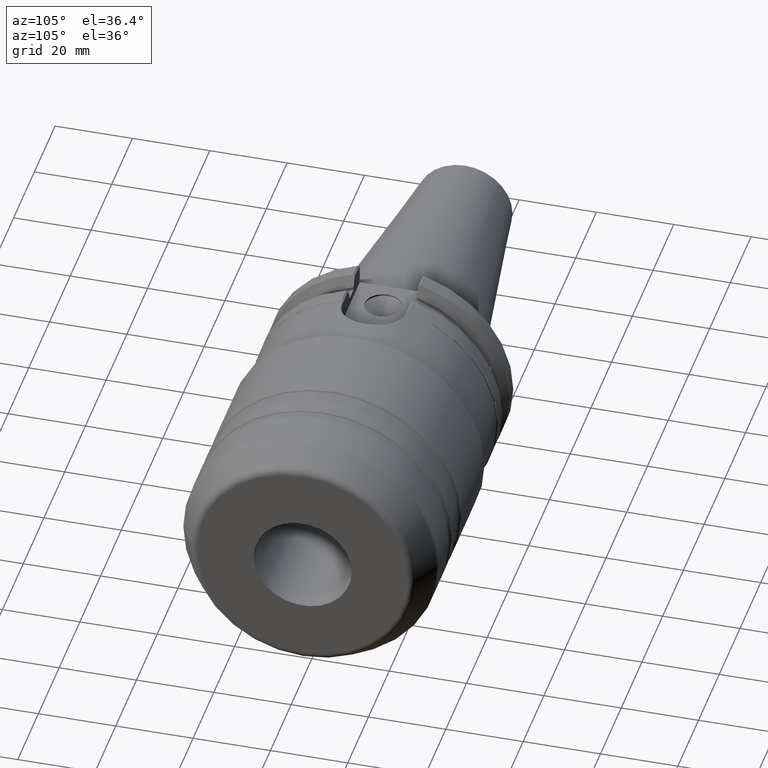
[diagram: clean part render]
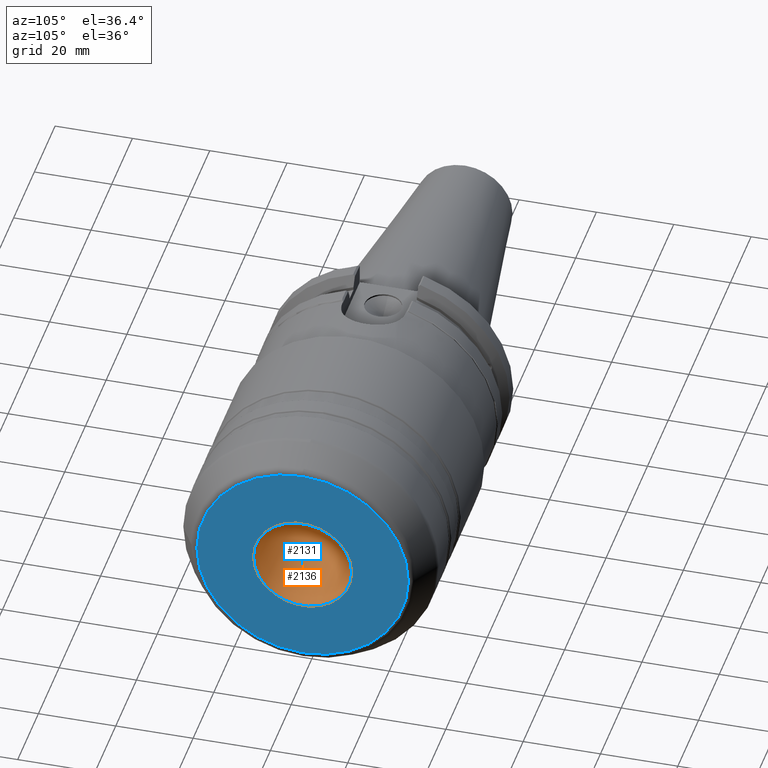
[diagram: same view with the hole feature highlighted: cylindrical wall and planar end face, labeled with their STEP entity ids]
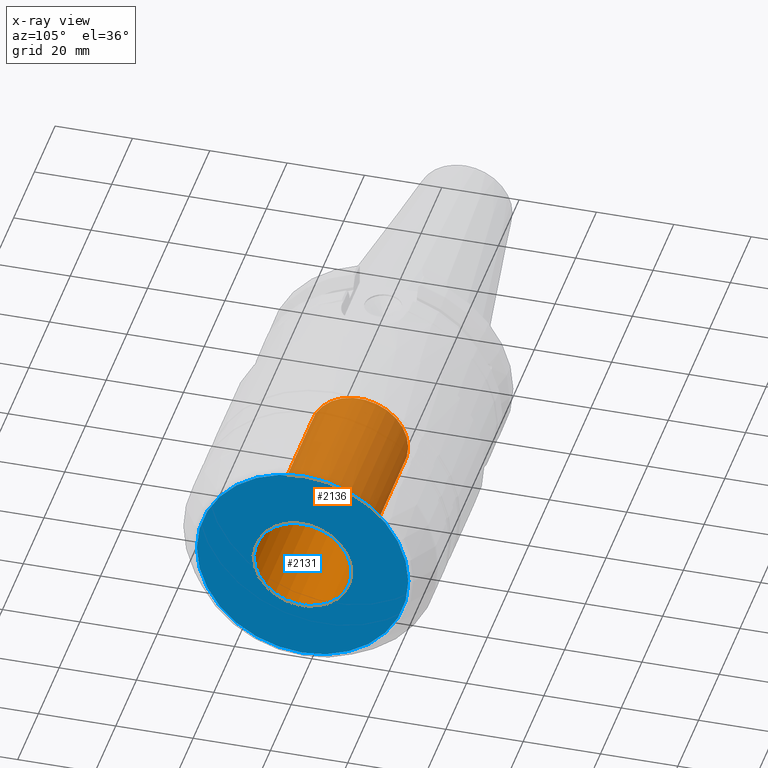
[diagram: x-ray of the same camera — body ghosted, the hole faces saturated]
A machine part, auxiliary view. The highlighted faces form one hole feature of diameter 25.4 mm: the cylindrical wall (entity #2136, orange) and its adjacent planar end face (entity #2131, blue) — they share a circular edge in the B-rep.
The next image is the same camera in x-ray (body ghosted, the hole faces saturated) — the bore reads through the body.
Wall:
#161=CYLINDRICAL_SURFACE('',#2367,12.7);
#224=FACE_OUTER_BOUND('',#336,.T.);
#336=EDGE_LOOP('',(#1651,#1652,#1653,#1654,#1655,#1656));
#452=LINE('',#3676,#556);
#556=VECTOR('',#2850,12.7);
#721=CIRCLE('',#2357,12.7);
#722=CIRCLE('',#2358,12.7);
#727=CIRCLE('',#2368,12.7);
#728=CIRCLE('',#2369,12.7);
#905=VERTEX_POINT('',#3653);
#906=VERTEX_POINT('',#3654);
#912=VERTEX_POINT('',#3675);
#913=VERTEX_POINT('',#3677);
#1182=EDGE_CURVE('',#905,#906,#721,.T.);
#1183=EDGE_CURVE('',#906,#905,#722,.T.);
#1192=EDGE_CURVE('',#906,#912,#452,.T.);
#1193=EDGE_CURVE('',#913,#912,#727,.T.);
#1194=EDGE_CURVE('',#912,#913,#728,.T.);
#1651=ORIENTED_EDGE('',*,*,#1182,.T.);
#1652=ORIENTED_EDGE('',*,*,#1192,.T.);
#1653=ORIENTED_EDGE('',*,*,#1193,.F.);
#1654=ORIENTED_EDGE('',*,*,#1194,.F.);
#1655=ORIENTED_EDGE('',*,*,#1192,.F.);
#1656=ORIENTED_EDGE('',*,*,#1183,.T.);
#2136=ADVANCED_FACE('',(#224),#161,.F.);
#2357=AXIS2_PLACEMENT_3D('',#3655,#2824,#2825);
#2358=AXIS2_PLACEMENT_3D('',#3656,#2826,#2827);
#2367=AXIS2_PLACEMENT_3D('',#3674,#2848,#2849);
#2368=AXIS2_PLACEMENT_3D('',#3678,#2851,#2852);
#2369=AXIS2_PLACEMENT_3D('',#3679,#2853,#2854);
#2824=DIRECTION('center_axis',(1.,0.,0.));
#2825=DIRECTION('ref_axis',(0.,0.,-1.));
#2826=DIRECTION('center_axis',(1.,0.,0.));
#2827=DIRECTION('ref_axis',(0.,0.,-1.));
#2848=DIRECTION('center_axis',(1.,0.,0.));
#2849=DIRECTION('ref_axis',(0.,1.,0.));
#2850=DIRECTION('',(-1.,0.,0.));
#2851=DIRECTION('center_axis',(1.,0.,0.));
#2852=DIRECTION('ref_axis',(0.,0.,-1.));
#2853=DIRECTION('center_axis',(1.,0.,0.));
#2854=DIRECTION('ref_axis',(0.,0.,-1.));
#3653=CARTESIAN_POINT('',(88.9,12.7,0.));
#3654=CARTESIAN_POINT('',(88.9,-12.7,-1.55530143491714E-15));
#3655=CARTESIAN_POINT('Origin',(88.9,0.,0.));
#3656=CARTESIAN_POINT('Origin',(88.9,0.,0.));
#3674=CARTESIAN_POINT('Origin',(61.65,0.,0.));
#3675=CARTESIAN_POINT('',(34.4,-12.7,-1.55530143491714E-15));
#3676=CARTESIAN_POINT('',(61.65,-12.7,-1.55530143491714E-15));
#3677=CARTESIAN_POINT('',(34.4,12.7,0.));
#3678=CARTESIAN_POINT('Origin',(34.4,0.,0.));
#3679=CARTESIAN_POINT('Origin',(34.4,0.,0.));
End face:
#68=FACE_BOUND('',#330,.T.);
#83=PLANE('',#2356);
#219=FACE_OUTER_BOUND('',#329,.T.);
#329=EDGE_LOOP('',(#1628,#1629));
#330=EDGE_LOOP('',(#1630,#1631));
#718=CIRCLE('',#2353,27.3452994616207);
#720=CIRCLE('',#2355,27.3452994616207);
#721=CIRCLE('',#2357,12.7);
#722=CIRCLE('',#2358,12.7);
#903=VERTEX_POINT('',#3647);
#904=VERTEX_POINT('',#3648);
#905=VERTEX_POINT('',#3653);
#906=VERTEX_POINT('',#3654);
#1179=EDGE_CURVE('',#903,#904,#718,.T.);
#1181=EDGE_CURVE('',#904,#903,#720,.T.);
#1182=EDGE_CURVE('',#905,#906,#721,.T.);
#1183=EDGE_CURVE('',#906,#905,#722,.T.);
#1628=ORIENTED_EDGE('',*,*,#1179,.F.);
#1629=ORIENTED_EDGE('',*,*,#1181,.F.);
#1630=ORIENTED_EDGE('',*,*,#1182,.F.);
#1631=ORIENTED_EDGE('',*,*,#1183,.F.);
#2131=ADVANCED_FACE('',(#219,#68),#83,.T.);
#2353=AXIS2_PLACEMENT_3D('',#3649,#2816,#2817);
#2355=AXIS2_PLACEMENT_3D('',#3651,#2820,#2821);
#2356=AXIS2_PLACEMENT_3D('',#3652,#2822,#2823);
#2357=AXIS2_PLACEMENT_3D('',#3655,#2824,#2825);
#2358=AXIS2_PLACEMENT_3D('',#3656,#2826,#2827);
#2816=DIRECTION('center_axis',(-1.,0.,0.));
#2817=DIRECTION('ref_axis',(0.,-1.,1.83697019872103E-16));
#2820=DIRECTION('center_axis',(-1.,0.,0.));
#2821=DIRECTION('ref_axis',(0.,-1.,1.83697019872103E-16));
#2822=DIRECTION('center_axis',(1.,0.,0.));
#2823=DIRECTION('ref_axis',(0.,0.,-1.));
#2824=DIRECTION('center_axis',(1.,0.,0.));
#2825=DIRECTION('ref_axis',(0.,0.,-1.));
#2826=DIRECTION('center_axis',(1.,0.,0.));
#2827=DIRECTION('ref_axis',(0.,0.,-1.));
#3647=CARTESIAN_POINT('',(88.9,27.3452994616207,-8.37208336434992E-15));
#3648=CARTESIAN_POINT('',(88.9,-3.34883334573997E-15,27.3452994616207));
#3649=CARTESIAN_POINT('Origin',(88.9,0.,0.));
#3651=CARTESIAN_POINT('Origin',(88.9,0.,0.));
#3652=CARTESIAN_POINT('Origin',(88.9,12.7,0.));
#3653=CARTESIAN_POINT('',(88.9,12.7,0.));
#3654=CARTESIAN_POINT('',(88.9,-12.7,-1.55530143491714E-15));
#3655=CARTESIAN_POINT('Origin',(88.9,0.,0.));
#3656=CARTESIAN_POINT('Origin',(88.9,0.,0.));